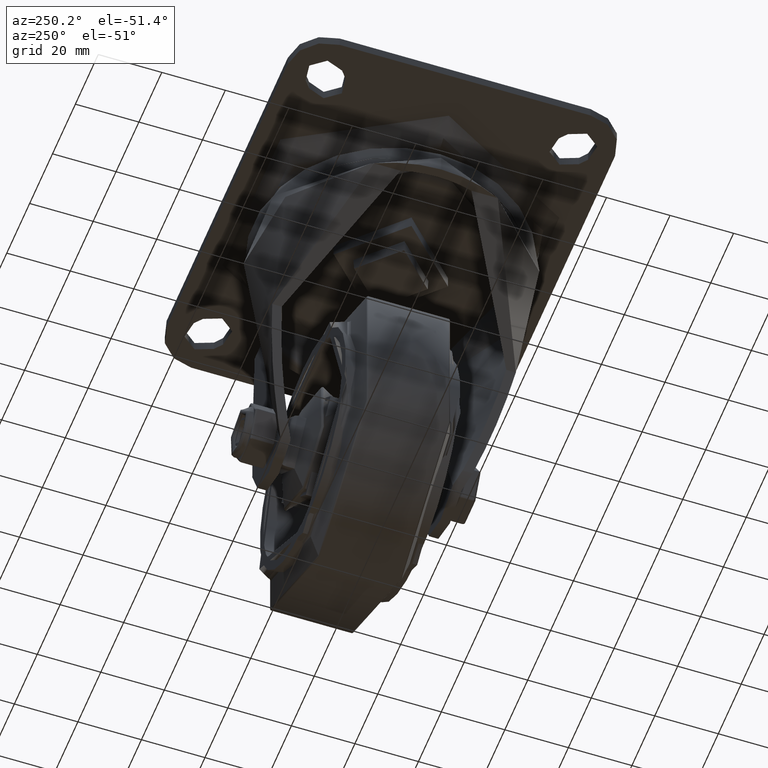
[diagram: clean part render]
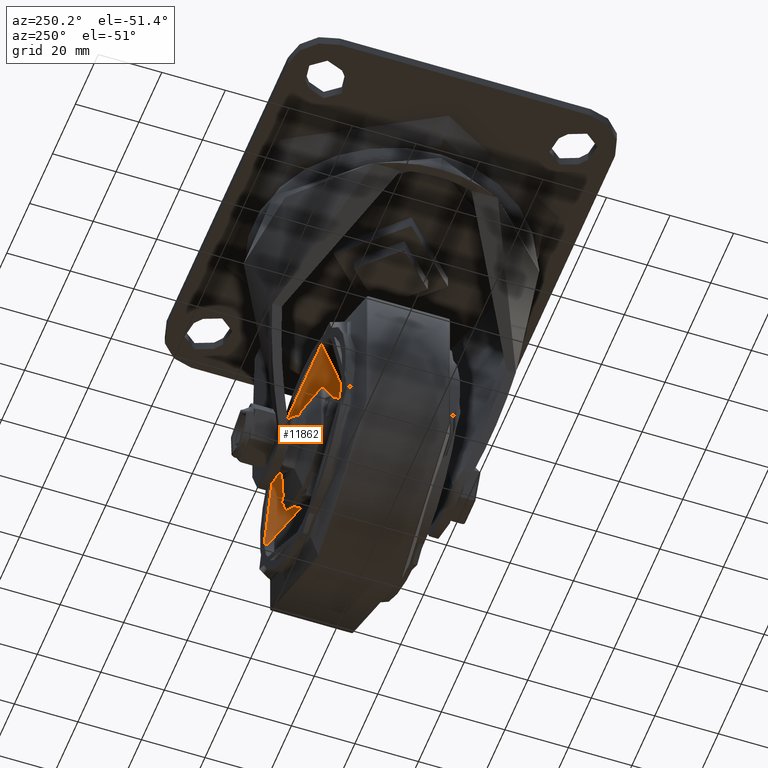
[diagram: same view with one face highlighted and labeled with its STEP entity id]
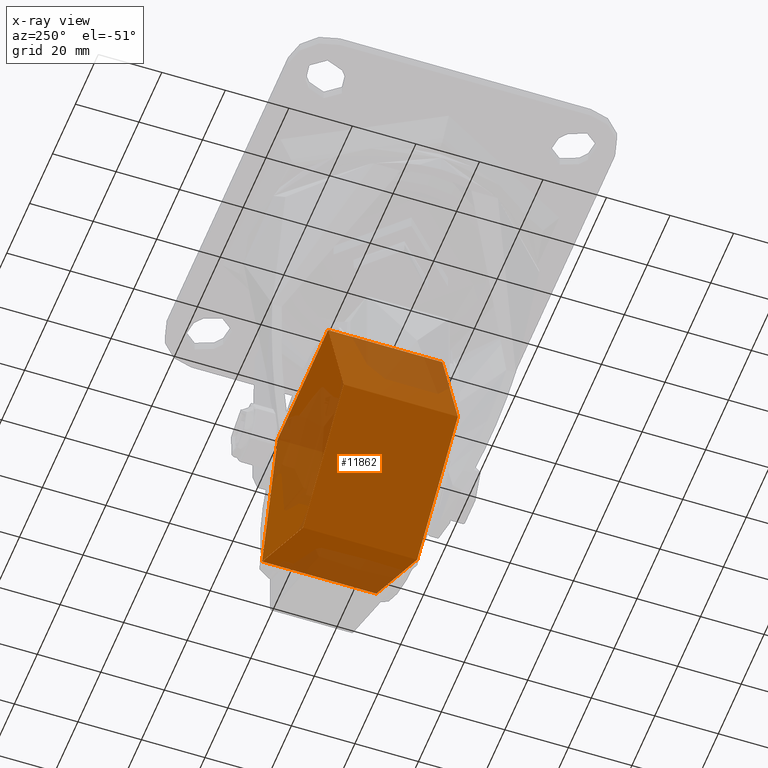
[diagram: x-ray of the same camera — body ghosted, the highlighted face saturated]
A machine part, auxiliary view. The second image highlights one B-rep face of the part: STEP entity #11862.
The next image is the same camera in x-ray: the body ghosted, the highlighted face saturated — about 27% of this face is hidden behind the body in this view.
In plain terms, the highlighted cylindrical surface (bore or boss wall) has radius 37.5 mm, axis along (0, -1, -0).
Its self-contained STEP definition (entity closure, byte-faithful):
#1530=LINE('',#17638,#2267);
#2267=VECTOR('',#14265,37.5);
#2944=CYLINDRICAL_SURFACE('',#12886,37.5);
#3222=FACE_OUTER_BOUND('',#3984,.T.);
#3984=EDGE_LOOP('',(#8620,#8621,#8622,#8623));
#4860=CIRCLE('',#12887,37.5);
#4861=CIRCLE('',#12888,37.5);
#5353=VERTEX_POINT('',#17635);
#5354=VERTEX_POINT('',#17637);
#6609=EDGE_CURVE('',#5353,#5353,#4860,.F.);
#6610=EDGE_CURVE('',#5353,#5354,#1530,.T.);
#6611=EDGE_CURVE('',#5354,#5354,#4861,.T.);
#8620=ORIENTED_EDGE('',*,*,#6609,.F.);
#8621=ORIENTED_EDGE('',*,*,#6610,.T.);
#8622=ORIENTED_EDGE('',*,*,#6611,.T.);
#8623=ORIENTED_EDGE('',*,*,#6610,.F.);
#11862=ADVANCED_FACE('',(#3222),#2944,.F.);
#12886=AXIS2_PLACEMENT_3D('',#17634,#14261,#14262);
#12887=AXIS2_PLACEMENT_3D('',#17636,#14263,#14264);
#12888=AXIS2_PLACEMENT_3D('',#17639,#14266,#14267);
#14261=DIRECTION('center_axis',(0.,-1.,-6.57456377289338E-18));
#14262=DIRECTION('ref_axis',(0.,-6.57456377289338E-18,1.));
#14263=DIRECTION('center_axis',(0.,1.,2.77555756156289E-15));
#14264=DIRECTION('ref_axis',(0.,-2.77555756156289E-15,1.));
#14265=DIRECTION('',(0.,-1.,-6.57456377289338E-18));
#14266=DIRECTION('center_axis',(0.,-1.,2.77555756156289E-15));
#14267=DIRECTION('ref_axis',(0.,2.77555756156289E-15,1.));
#17634=CARTESIAN_POINT('Origin',(0.,2.56407987142843E-16,-8.08072787937931E-31));
#17635=CARTESIAN_POINT('',(-4.59242549680257E-15,18.,-37.5));
#17636=CARTESIAN_POINT('Origin',(0.,18.,1.1834214791208E-16));
#17637=CARTESIAN_POINT('',(4.59242549680257E-15,-18.,-37.5));
#17638=CARTESIAN_POINT('',(4.59242549680258E-15,5.02954128626345E-16,-37.5));
#17639=CARTESIAN_POINT('Origin',(0.,-18.,-1.18342147912082E-16));